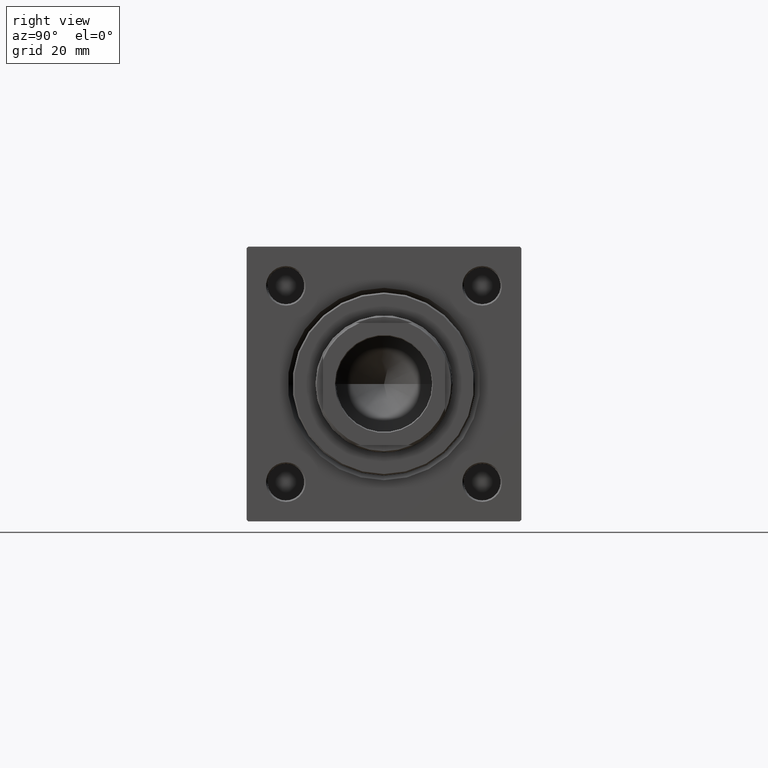
[diagram: clean part render]
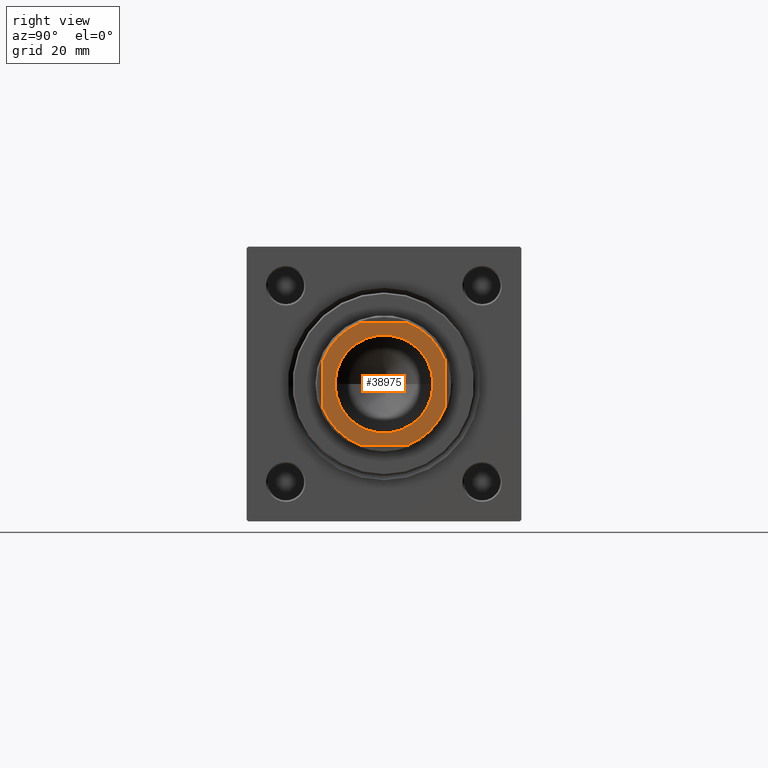
[diagram: same view with one face highlighted and labeled with its STEP entity id]
A machine part, right view. The second image highlights one B-rep face of the part: STEP entity #38975.
In plain terms, the highlighted planar face has unit normal (1, 0, 0).
Its self-contained STEP definition (entity closure, byte-faithful):
#793 = FACE_OUTER_BOUND ( 'NONE', #14407, .T. ) ;
#908 = DIRECTION ( 'NONE',  ( -1.734723475976807094E-16, 1.000000000000000000, -0.000000000000000000 ) ) ;
#1590 = CARTESIAN_POINT ( 'NONE',  ( 0.000000000000000000, 0.000000000000000000, 150.0000000000000284 ) ) ;
#1701 = EDGE_CURVE ( 'NONE', #8233, #18232, #13509, .T. ) ;
#2563 = ORIENTED_EDGE ( 'NONE', *, *, #37777, .T. ) ;
#3574 = VECTOR ( 'NONE', #908, 1000.000000000000000 ) ;
#3778 = VECTOR ( 'NONE', #48555, 1000.000000000000000 ) ;
#5959 = LINE ( 'NONE', #17619, #3778 ) ;
#6099 = DIRECTION ( 'NONE',  ( 1.000000000000000000, 0.000000000000000000, 0.000000000000000000 ) ) ;
#7005 = AXIS2_PLACEMENT_3D ( 'NONE', #37920, #33618, #33376 ) ;
#7598 = CARTESIAN_POINT ( 'NONE',  ( -20.00000000000000000, 7.889866919029805636, 150.0000000000000284 ) ) ;
#7757 = LINE ( 'NONE', #27530, #3574 ) ;
#8233 = VERTEX_POINT ( 'NONE', #43543 ) ;
#9190 = ORIENTED_EDGE ( 'NONE', *, *, #19406, .T. ) ;
#9195 = DIRECTION ( 'NONE',  ( 1.000000000000000000, 0.000000000000000000, 0.000000000000000000 ) ) ;
#9236 = VERTEX_POINT ( 'NONE', #27650 ) ;
#10191 = CARTESIAN_POINT ( 'NONE',  ( 0.000000000000000000, 0.000000000000000000, 150.0000000000000284 ) ) ;
#10237 = DIRECTION ( 'NONE',  ( 1.000000000000000000, 0.000000000000000000, 0.000000000000000000 ) ) ;
#10725 = EDGE_CURVE ( 'NONE', #37956, #33889, #24842, .T. ) ;
#11582 = CIRCLE ( 'NONE', #24544, 21.50000000000002132 ) ;
#11680 = AXIS2_PLACEMENT_3D ( 'NONE', #30509, #15561, #12505 ) ;
#12505 = DIRECTION ( 'NONE',  ( 1.000000000000000000, 0.000000000000000000, 0.000000000000000000 ) ) ;
#12714 = FACE_BOUND ( 'NONE', #43956, .T. ) ;
#12730 = VERTEX_POINT ( 'NONE', #47620 ) ;
#13174 = VERTEX_POINT ( 'NONE', #32693 ) ;
#13509 = CIRCLE ( 'NONE', #7005, 16.05000000000002203 ) ;
#14407 = EDGE_LOOP ( 'NONE', ( #2563, #17284, #34186, #14775, #9190, #34786, #32157, #33603 ) ) ;
#14775 = ORIENTED_EDGE ( 'NONE', *, *, #42753, .T. ) ;
#15561 = DIRECTION ( 'NONE',  ( -0.000000000000000000, 0.000000000000000000, 1.000000000000000000 ) ) ;
#15671 = EDGE_CURVE ( 'NONE', #13174, #9236, #5959, .T. ) ;
#15906 = VERTEX_POINT ( 'NONE', #16066 ) ;
#16066 = CARTESIAN_POINT ( 'NONE',  ( 20.00000000000000000, 7.889866919029812742, 150.0000000000000284 ) ) ;
#17284 = ORIENTED_EDGE ( 'NONE', *, *, #24516, .T. ) ;
#17549 = CARTESIAN_POINT ( 'NONE',  ( -7.889866919029809189, 20.00000000000000000, 150.0000000000000284 ) ) ;
#17619 = CARTESIAN_POINT ( 'NONE',  ( -19.99999999999999645, -20.00000000000000000, 150.0000000000000284 ) ) ;
#18232 = VERTEX_POINT ( 'NONE', #42438 ) ;
#18260 = CIRCLE ( 'NONE', #44188, 21.49999999999996447 ) ;
#19406 = EDGE_CURVE ( 'NONE', #29445, #12730, #39177, .T. ) ;
#19437 = CIRCLE ( 'NONE', #36470, 21.50000000000002132 ) ;
#20159 = CARTESIAN_POINT ( 'NONE',  ( -20.00000000000000355, 20.00000000000000000, 150.0000000000000284 ) ) ;
#20556 = DIRECTION ( 'NONE',  ( -0.000000000000000000, 0.000000000000000000, 1.000000000000000000 ) ) ;
#21041 = CARTESIAN_POINT ( 'NONE',  ( -20.00000000000000355, 20.00000000000000000, 150.0000000000000284 ) ) ;
#21072 = DIRECTION ( 'NONE',  ( 1.000000000000000000, 0.000000000000000000, 0.000000000000000000 ) ) ;
#22197 = CIRCLE ( 'NONE', #11680, 21.50000000000002132 ) ;
#23340 = VECTOR ( 'NONE', #26766, 1000.000000000000000 ) ;
#24162 = VECTOR ( 'NONE', #40051, 1000.000000000000000 ) ;
#24516 = EDGE_CURVE ( 'NONE', #15906, #37956, #19437, .T. ) ;
#24544 = AXIS2_PLACEMENT_3D ( 'NONE', #10191, #44171, #40370 ) ;
#24709 = CIRCLE ( 'NONE', #30378, 16.05000000000002203 ) ;
#24842 = LINE ( 'NONE', #21041, #24162 ) ;
#25127 = DIRECTION ( 'NONE',  ( -0.000000000000000000, 0.000000000000000000, 1.000000000000000000 ) ) ;
#25368 = CARTESIAN_POINT ( 'NONE',  ( 0.000000000000000000, 0.000000000000000000, 150.0000000000000284 ) ) ;
#26766 = DIRECTION ( 'NONE',  ( 1.734723475976807094E-16, -1.000000000000000000, 0.000000000000000000 ) ) ;
#27530 = CARTESIAN_POINT ( 'NONE',  ( 19.99999999999999645, 20.00000000000000000, 150.0000000000000284 ) ) ;
#27650 = CARTESIAN_POINT ( 'NONE',  ( 7.889866919029648429, -20.00000000000000000, 150.0000000000000284 ) ) ;
#28174 = PLANE ( 'NONE',  #45690 ) ;
#28709 = DIRECTION ( 'NONE',  ( -0.000000000000000000, 0.000000000000000000, 1.000000000000000000 ) ) ;
#29445 = VERTEX_POINT ( 'NONE', #7598 ) ;
#30378 = AXIS2_PLACEMENT_3D ( 'NONE', #45450, #49507, #10237 ) ;
#30509 = CARTESIAN_POINT ( 'NONE',  ( 0.000000000000000000, 0.000000000000000000, 150.0000000000000284 ) ) ;
#32157 = ORIENTED_EDGE ( 'NONE', *, *, #15671, .T. ) ;
#32693 = CARTESIAN_POINT ( 'NONE',  ( -7.889866919029809189, -20.00000000000000000, 150.0000000000000284 ) ) ;
#33092 = CARTESIAN_POINT ( 'NONE',  ( 7.889866919029809189, 20.00000000000000000, 150.0000000000000284 ) ) ;
#33376 = DIRECTION ( 'NONE',  ( 1.000000000000000000, 0.000000000000000000, 0.000000000000000000 ) ) ;
#33603 = ORIENTED_EDGE ( 'NONE', *, *, #48391, .T. ) ;
#33618 = DIRECTION ( 'NONE',  ( 0.000000000000000000, -0.000000000000000000, -1.000000000000000000 ) ) ;
#33889 = VERTEX_POINT ( 'NONE', #17549 ) ;
#34186 = ORIENTED_EDGE ( 'NONE', *, *, #10725, .T. ) ;
#34786 = ORIENTED_EDGE ( 'NONE', *, *, #35837, .T. ) ;
#35837 = EDGE_CURVE ( 'NONE', #12730, #13174, #11582, .T. ) ;
#36058 = VERTEX_POINT ( 'NONE', #41971 ) ;
#36470 = AXIS2_PLACEMENT_3D ( 'NONE', #25368, #25127, #6099 ) ;
#37777 = EDGE_CURVE ( 'NONE', #36058, #15906, #7757, .T. ) ;
#37920 = CARTESIAN_POINT ( 'NONE',  ( 0.000000000000000000, 0.000000000000000000, 150.0000000000000284 ) ) ;
#37956 = VERTEX_POINT ( 'NONE', #33092 ) ;
#38975 = ADVANCED_FACE ( 'NONE', ( #12714, #793 ), #28174, .T. ) ;
#39177 = LINE ( 'NONE', #20159, #23340 ) ;
#40051 = DIRECTION ( 'NONE',  ( -1.000000000000000000, -0.000000000000000000, -0.000000000000000000 ) ) ;
#40370 = DIRECTION ( 'NONE',  ( 1.000000000000000000, 0.000000000000000000, 0.000000000000000000 ) ) ;
#41971 = CARTESIAN_POINT ( 'NONE',  ( 20.00000000000000000, -7.889866919029643100, 150.0000000000000284 ) ) ;
#42438 = CARTESIAN_POINT ( 'NONE',  ( 16.05000000000002203, 0.000000000000000000, 150.0000000000000284 ) ) ;
#42753 = EDGE_CURVE ( 'NONE', #33889, #29445, #22197, .T. ) ;
#43543 = CARTESIAN_POINT ( 'NONE',  ( -16.05000000000002203, 1.965558112631504571E-15, 150.0000000000000284 ) ) ;
#43632 = CARTESIAN_POINT ( 'NONE',  ( 0.000000000000000000, 0.000000000000000000, 150.0000000000000284 ) ) ;
#43956 = EDGE_LOOP ( 'NONE', ( #45184, #49024 ) ) ;
#44171 = DIRECTION ( 'NONE',  ( -0.000000000000000000, 0.000000000000000000, 1.000000000000000000 ) ) ;
#44188 = AXIS2_PLACEMENT_3D ( 'NONE', #1590, #28709, #9195 ) ;
#45184 = ORIENTED_EDGE ( 'NONE', *, *, #47255, .T. ) ;
#45450 = CARTESIAN_POINT ( 'NONE',  ( 0.000000000000000000, 0.000000000000000000, 150.0000000000000284 ) ) ;
#45690 = AXIS2_PLACEMENT_3D ( 'NONE', #43632, #20556, #21072 ) ;
#47255 = EDGE_CURVE ( 'NONE', #18232, #8233, #24709, .T. ) ;
#47620 = CARTESIAN_POINT ( 'NONE',  ( -20.00000000000000000, -7.889866919029812742, 150.0000000000000284 ) ) ;
#48391 = EDGE_CURVE ( 'NONE', #9236, #36058, #18260, .T. ) ;
#48555 = DIRECTION ( 'NONE',  ( 1.000000000000000000, 0.000000000000000000, 0.000000000000000000 ) ) ;
#49024 = ORIENTED_EDGE ( 'NONE', *, *, #1701, .T. ) ;
#49507 = DIRECTION ( 'NONE',  ( 0.000000000000000000, -0.000000000000000000, -1.000000000000000000 ) ) ;